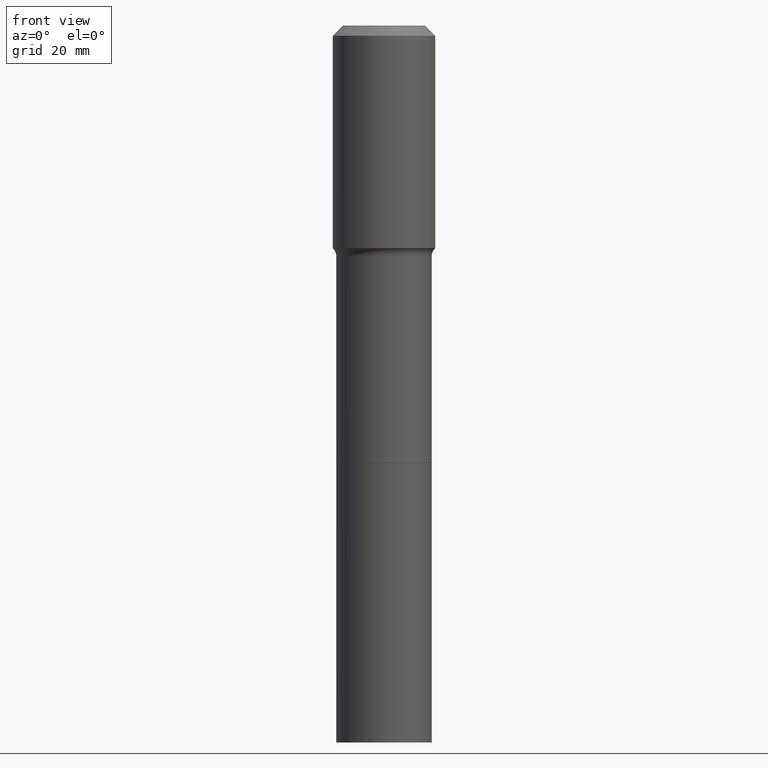
[diagram: clean part render]
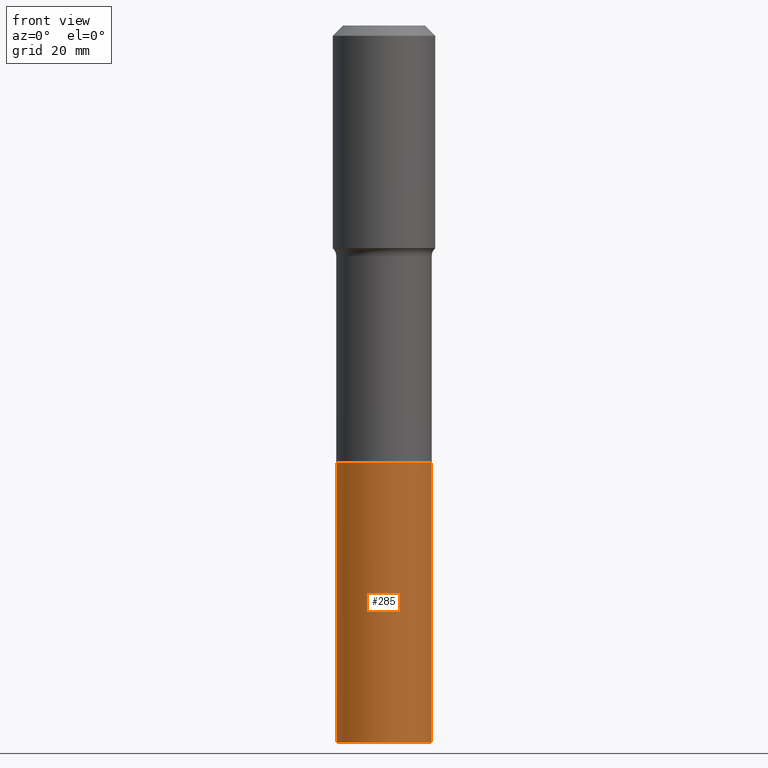
[diagram: same view with one face highlighted and labeled with its STEP entity id]
A machine part, front view. The second image highlights one B-rep face of the part: STEP entity #285.
In plain terms, the highlighted cylindrical surface (partial cylindrical patch) has radius 9.3269 mm, axis along (-0, 0, 1).
Its self-contained STEP definition (entity closure, byte-faithful):
#29 = DIRECTION ( 'NONE',  ( -2.445468806185136597E-29, 3.491481338843145583E-15, 1.000000000000000000 ) ) ;
#31 = DIRECTION ( 'NONE',  ( 1.000000000000000000, -6.982962677686267499E-15, 0.000000000000000000 ) ) ;
#35 = EDGE_CURVE ( 'NONE', #477, #473, #251, .T. ) ;
#60 = CARTESIAN_POINT ( 'NONE',  ( -0.3672000000000000264, -1.288363721913759926E-14, -3.362800000000000011 ) ) ;
#75 = VERTEX_POINT ( 'NONE', #139 ) ;
#86 = CARTESIAN_POINT ( 'NONE',  ( -0.3672000000000002484, -9.132040520550640577E-15, -3.362800000000000011 ) ) ;
#107 = AXIS2_PLACEMENT_3D ( 'NONE', #149, #314, #232 ) ;
#109 = ORIENTED_EDGE ( 'NONE', *, *, #35, .F. ) ;
#116 = ORIENTED_EDGE ( 'NONE', *, *, #336, .T. ) ;
#119 = VERTEX_POINT ( 'NONE', #411 ) ;
#139 = CARTESIAN_POINT ( 'NONE',  ( 0.3672000000000004150, -2.180849073868205104E-14, -5.511800000000000033 ) ) ;
#144 = EDGE_CURVE ( 'NONE', #473, #119, #392, .T. ) ;
#149 = CARTESIAN_POINT ( 'NONE',  ( 8.223622501439377936E-29, -1.174115344626172983E-14, -3.362800000000000011 ) ) ;
#171 = DIRECTION ( 'NONE',  ( -2.445468806185136877E-29, 3.491481338843145188E-15, 1.000000000000000000 ) ) ;
#177 = EDGE_CURVE ( 'NONE', #477, #75, #279, .T. ) ;
#191 = CARTESIAN_POINT ( 'NONE',  ( -0.3672000000000004150, -1.288363721913759611E-14, -5.511800000000000033 ) ) ;
#193 = CYLINDRICAL_SURFACE ( 'NONE', #484, 0.3672000000000002484 ) ;
#229 = CARTESIAN_POINT ( 'NONE',  ( 8.223622501439377936E-29, -1.174115344626172983E-14, -3.362800000000000011 ) ) ;
#232 = DIRECTION ( 'NONE',  ( 1.000000000000000000, -6.982962677686269077E-15, 0.000000000000000000 ) ) ;
#240 = EDGE_LOOP ( 'NONE', ( #109, #509, #116, #324 ) ) ;
#251 = LINE ( 'NONE', #86, #282 ) ;
#263 = CARTESIAN_POINT ( 'NONE',  ( 1.347893496593123646E-28, -1.924434684343564878E-14, -5.511800000000000033 ) ) ;
#270 = FACE_OUTER_BOUND ( 'NONE', #240, .T. ) ;
#279 = CIRCLE ( 'NONE', #455, 0.3672000000000004150 ) ;
#282 = VECTOR ( 'NONE', #171, 39.37007874015748143 ) ;
#285 = ADVANCED_FACE ( 'NONE', ( #270 ), #193, .T. ) ;
#314 = DIRECTION ( 'NONE',  ( -2.445468806185136597E-29, 3.491481338843145583E-15, 1.000000000000000000 ) ) ;
#320 = VECTOR ( 'NONE', #471, 39.37007874015748143 ) ;
#324 = ORIENTED_EDGE ( 'NONE', *, *, #144, .F. ) ;
#336 = EDGE_CURVE ( 'NONE', #75, #119, #468, .T. ) ;
#344 = CARTESIAN_POINT ( 'NONE',  ( 0.3672000000000002484, -1.430529734150812736E-14, -3.362800000000000011 ) ) ;
#353 = DIRECTION ( 'NONE',  ( -2.445468806185136597E-29, 3.491481338843145583E-15, 1.000000000000000000 ) ) ;
#392 = CIRCLE ( 'NONE', #107, 0.3672000000000000264 ) ;
#393 = DIRECTION ( 'NONE',  ( 1.000000000000000000, -6.982962677686265133E-15, 0.000000000000000000 ) ) ;
#411 = CARTESIAN_POINT ( 'NONE',  ( 0.3672000000000000264, -1.430529734150812736E-14, -3.362800000000000011 ) ) ;
#455 = AXIS2_PLACEMENT_3D ( 'NONE', #263, #29, #31 ) ;
#468 = LINE ( 'NONE', #344, #320 ) ;
#471 = DIRECTION ( 'NONE',  ( -2.445468806185136877E-29, 3.491481338843145188E-15, 1.000000000000000000 ) ) ;
#473 = VERTEX_POINT ( 'NONE', #60 ) ;
#477 = VERTEX_POINT ( 'NONE', #191 ) ;
#484 = AXIS2_PLACEMENT_3D ( 'NONE', #229, #353, #393 ) ;
#509 = ORIENTED_EDGE ( 'NONE', *, *, #177, .T. ) ;